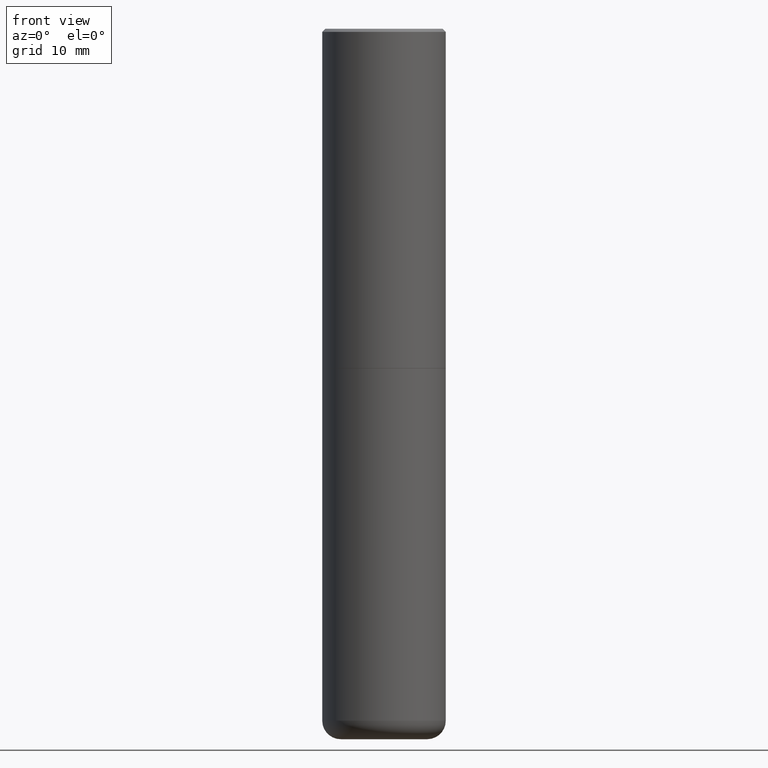
[diagram: clean part render]
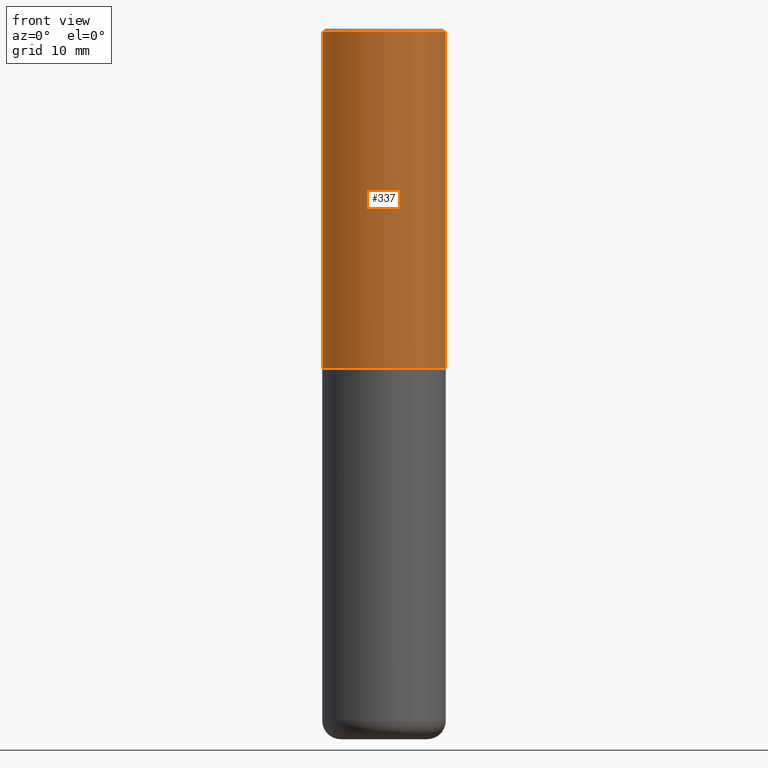
[diagram: same view with one face highlighted and labeled with its STEP entity id]
A machine part, front view. The second image highlights one B-rep face of the part: STEP entity #337.
In plain terms, the highlighted cylindrical surface (partial cylindrical patch) has radius 10 mm, axis along (-0, 0, 1).
Its self-contained STEP definition (entity closure, byte-faithful):
#5 = VERTEX_POINT ( 'NONE', #38 ) ;
#22 = DIRECTION ( 'NONE',  ( -2.445468806185136597E-29, 3.491481338843145583E-15, 1.000000000000000000 ) ) ;
#34 = EDGE_LOOP ( 'NONE', ( #384, #201, #129, #267 ) ) ;
#38 = CARTESIAN_POINT ( 'NONE',  ( 0.3937000000000002720, -1.030615461599718763E-14, -2.164399999999999658 ) ) ;
#39 = DIRECTION ( 'NONE',  ( 1.000000000000000000, -6.982962677686266711E-15, 0.000000000000000000 ) ) ;
#46 = EDGE_CURVE ( 'NONE', #5, #91, #74, .T. ) ;
#68 = EDGE_CURVE ( 'NONE', #191, #91, #113, .T. ) ;
#74 = LINE ( 'NONE', #136, #148 ) ;
#75 = CARTESIAN_POINT ( 'NONE',  ( 0.3937000000000001054, -2.770807688499516128E-15, -0.02000000000000008715 ) ) ;
#84 = CARTESIAN_POINT ( 'NONE',  ( 5.292972684107107621E-29, -7.556962209792102838E-15, -2.164399999999999658 ) ) ;
#91 = VERTEX_POINT ( 'NONE', #75 ) ;
#106 = CIRCLE ( 'NONE', #259, 0.3937000000000002720 ) ;
#111 = EDGE_CURVE ( 'NONE', #328, #191, #280, .T. ) ;
#113 = CIRCLE ( 'NONE', #308, 0.3937000000000001054 ) ;
#129 = ORIENTED_EDGE ( 'NONE', *, *, #46, .T. ) ;
#136 = CARTESIAN_POINT ( 'NONE',  ( 0.3937000000000002164, -2.749192406205084794E-15, 1.919750796630861012E-29 ) ) ;
#144 = DIRECTION ( 'NONE',  ( -2.445468806185136597E-29, 3.491481338843145583E-15, 1.000000000000000000 ) ) ;
#148 = VECTOR ( 'NONE', #307, 39.37007874015748143 ) ;
#177 = CARTESIAN_POINT ( 'NONE',  ( -0.3937000000000001054, 2.679362779428220707E-15, -0.02000000000000008715 ) ) ;
#181 = DIRECTION ( 'NONE',  ( 1.000000000000000000, -6.982962677686269077E-15, 0.000000000000000000 ) ) ;
#188 = CARTESIAN_POINT ( 'NONE',  ( -0.3937000000000002720, -1.015989167596965718E-15, -2.164399999999999658 ) ) ;
#191 = VERTEX_POINT ( 'NONE', #177 ) ;
#201 = ORIENTED_EDGE ( 'NONE', *, *, #269, .T. ) ;
#235 = AXIS2_PLACEMENT_3D ( 'NONE', #323, #22, #410 ) ;
#246 = DIRECTION ( 'NONE',  ( -2.445468806185136877E-29, 3.491481338843145188E-15, 1.000000000000000000 ) ) ;
#259 = AXIS2_PLACEMENT_3D ( 'NONE', #84, #144, #181 ) ;
#267 = ORIENTED_EDGE ( 'NONE', *, *, #68, .F. ) ;
#269 = EDGE_CURVE ( 'NONE', #328, #5, #106, .T. ) ;
#276 = DIRECTION ( 'NONE',  ( -2.445468806185136597E-29, 3.491481338843145583E-15, 1.000000000000000000 ) ) ;
#280 = LINE ( 'NONE', #316, #353 ) ;
#307 = DIRECTION ( 'NONE',  ( -2.445468806185136877E-29, 3.491481338843145188E-15, 1.000000000000000000 ) ) ;
#308 = AXIS2_PLACEMENT_3D ( 'NONE', #340, #276, #39 ) ;
#316 = CARTESIAN_POINT ( 'NONE',  ( -0.3937000000000002164, 2.797406750687515970E-15, -1.936584745033357576E-29 ) ) ;
#320 = CYLINDRICAL_SURFACE ( 'NONE', #235, 0.3937000000000002164 ) ;
#321 = FACE_OUTER_BOUND ( 'NONE', #34, .T. ) ;
#323 = CARTESIAN_POINT ( 'NONE',  ( 0.000000000000000000, 0.000000000000000000, 0.000000000000000000 ) ) ;
#328 = VERTEX_POINT ( 'NONE', #188 ) ;
#337 = ADVANCED_FACE ( 'NONE', ( #321 ), #320, .T. ) ;
#340 = CARTESIAN_POINT ( 'NONE',  ( 4.890937612370294178E-31, -6.982962677686321191E-17, -0.02000000000000008715 ) ) ;
#353 = VECTOR ( 'NONE', #246, 39.37007874015748143 ) ;
#384 = ORIENTED_EDGE ( 'NONE', *, *, #111, .F. ) ;
#410 = DIRECTION ( 'NONE',  ( 1.000000000000000000, -6.982962677686266711E-15, 4.876176775795935793E-29 ) ) ;